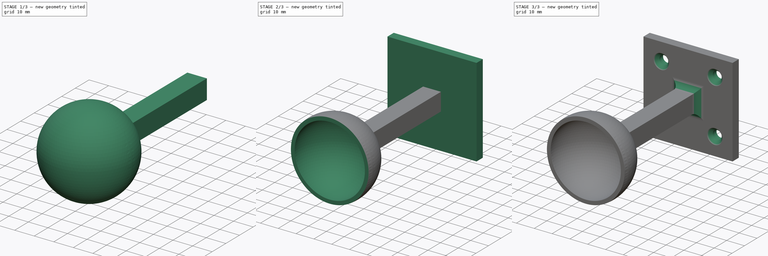
[diagram: build sequence overview — one tinted view per stage of 3, left to right]
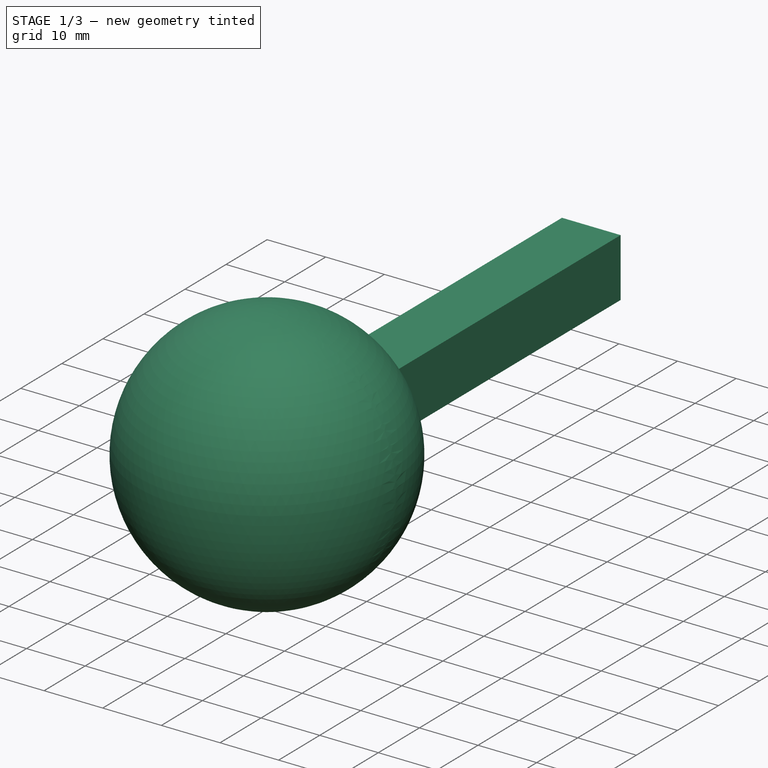
[diagram: stage 1 of 3 — iso view after this stage's code; geometry added in this stage tinted green]
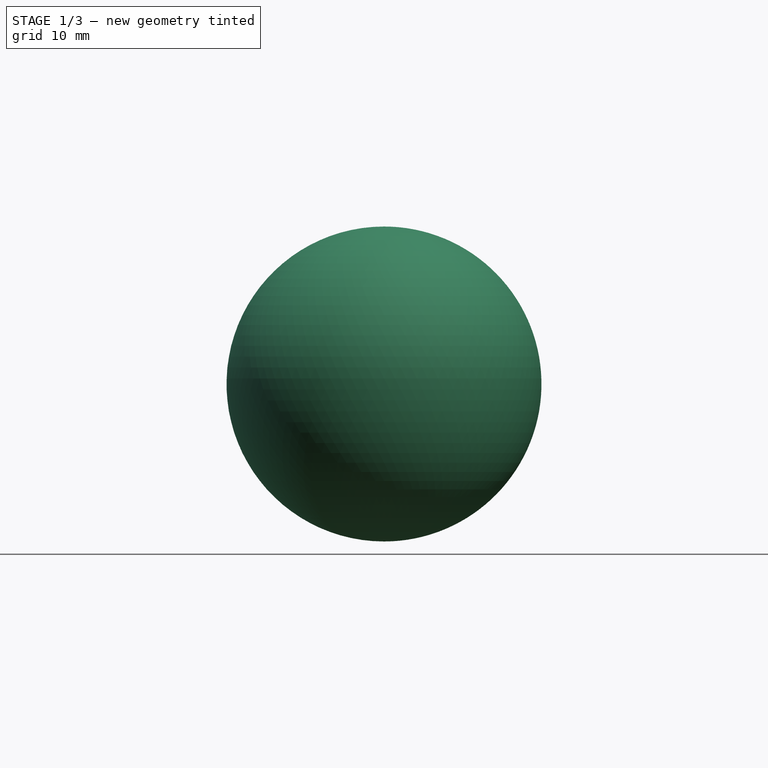
[diagram: stage 1 of 3 — front view after this stage's code; geometry added in this stage tinted green]
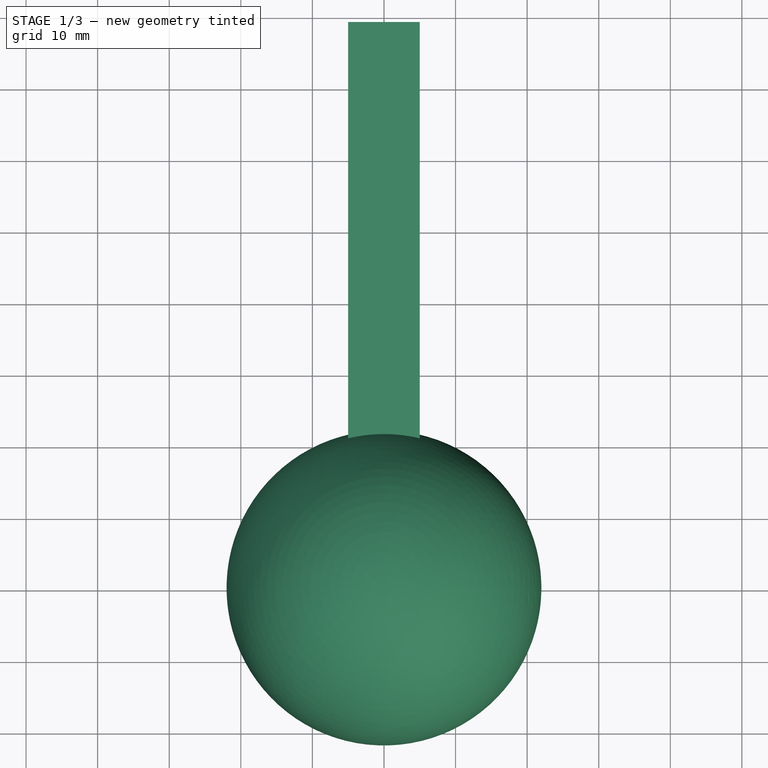
[diagram: stage 1 of 3 — top view after this stage's code; geometry added in this stage tinted green]
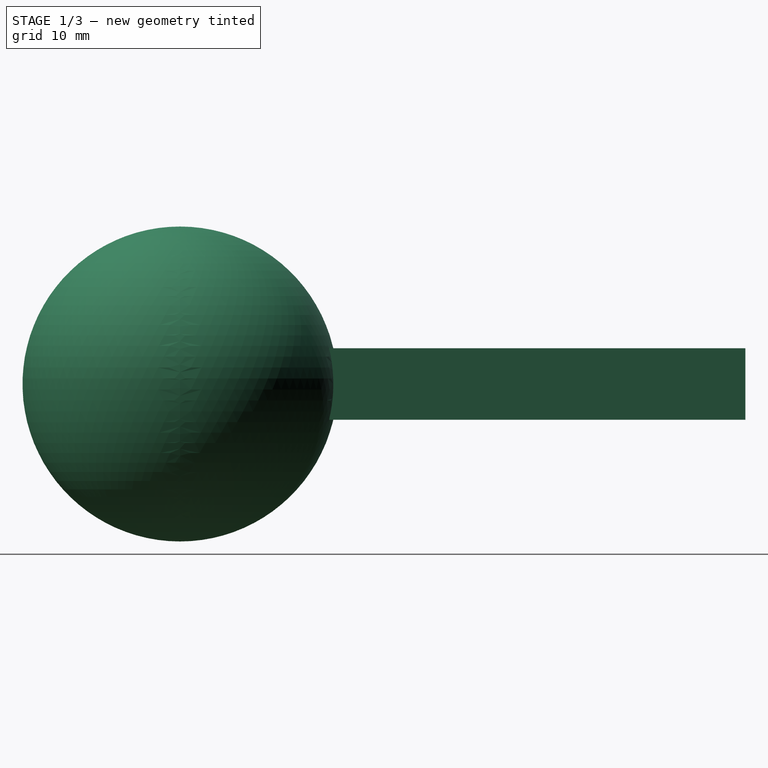
[diagram: stage 1 of 3 — right view after this stage's code; geometry added in this stage tinted green]
FCSTD DOCUMENT  (FreeCAD 1.1R20260325 (Git shallow))
Label: rpi mount socket
License: All rights reserved
LicenseURL: https://en.wikipedia.org/wiki/All_rights_reserved
objects: Sketcher::SketchObject×2, App::Point×1, PartDesign::AdditiveSphere×1, PartDesign::AdditiveBox×1, PartDesign::SubtractiveSphere×1, PartDesign::SubtractiveBox×1, PartDesign::Pad×1, PartDesign::Hole×1, PartDesign::Fillet×1, PartDesign::Body×1
note: 26 computed .brp shape members not serialized (recipe doc carries the construction recipe); baked Part::Feature solids carry a one-line shape summary decoded from their .brp

FEATURE [App::Point] Origin005  label="Origin006"
  Role = Origin
FEATURE [PartDesign::AdditiveSphere] Sphere003
  Angle1 = -90
  Angle2 = 90
  Angle3 = 360
  AttacherType = Attacher::AttachEngine3D
  Radius = 22
  Refine = true
  Suppressed = false
FEATURE [PartDesign::AdditiveBox] Box
  AttacherType = Attacher::AttachEngine3D
  AttachmentOffset = pos=(-5,9,-5) rot=(0,0,1;0rad)
  AttachmentSupport = -> [Origin004]
  BaseFeature = -> Sphere003
  Height = 10
  Length = 10
  MapMode = 5
  Placement = pos=(-5,9,-5) rot=(0,0,1;0rad)
  Refine = true
  Suppressed = false
  Width = 70
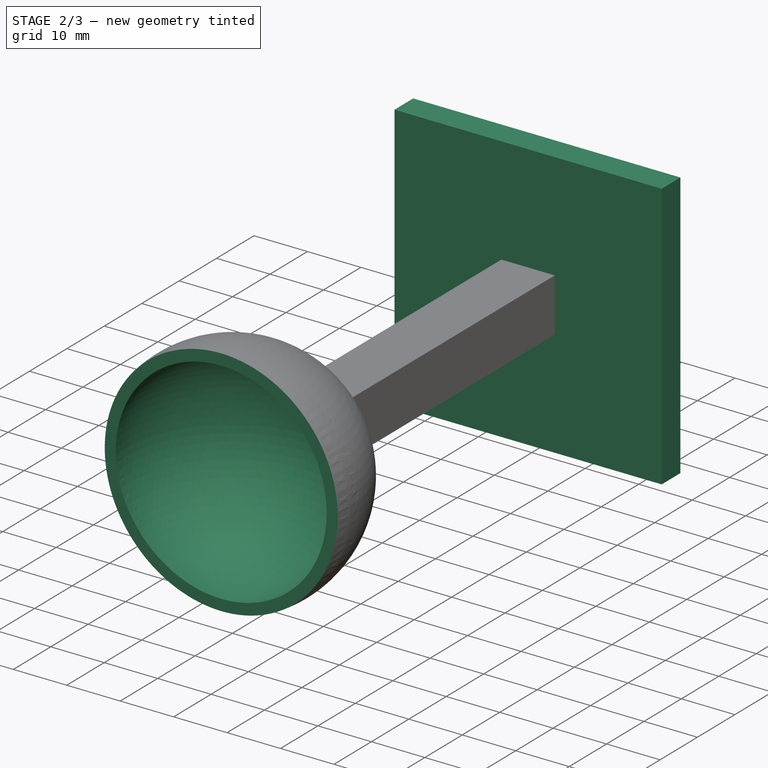
[diagram: stage 2 of 3 — iso view after this stage's code; geometry added in this stage tinted green]
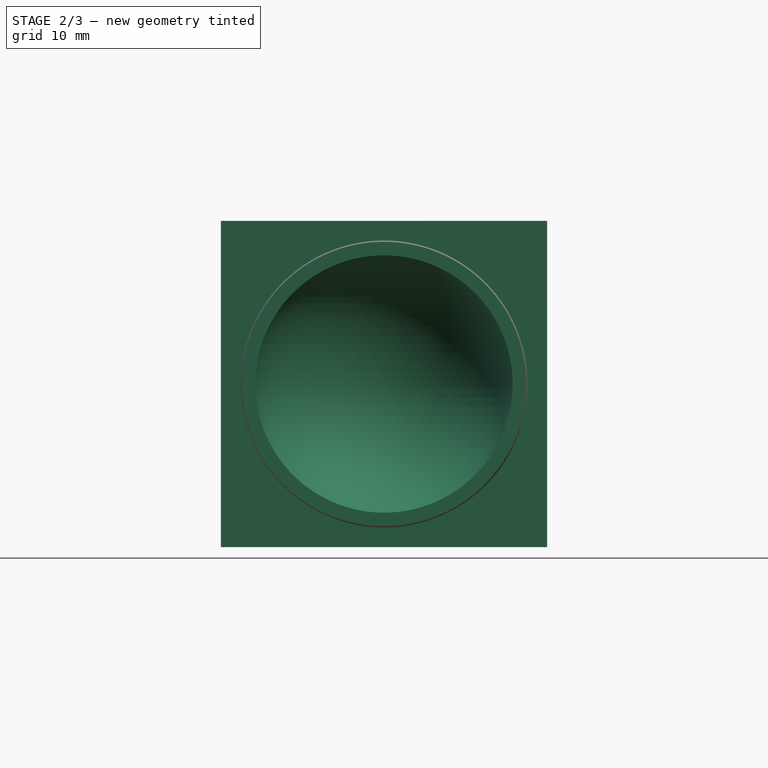
[diagram: stage 2 of 3 — front view after this stage's code; geometry added in this stage tinted green]
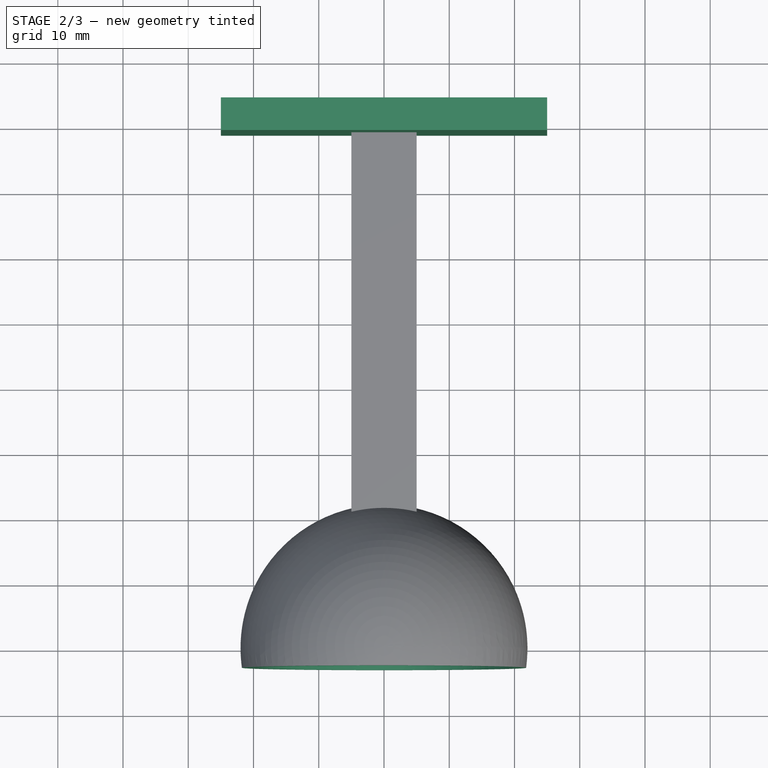
[diagram: stage 2 of 3 — top view after this stage's code; geometry added in this stage tinted green]
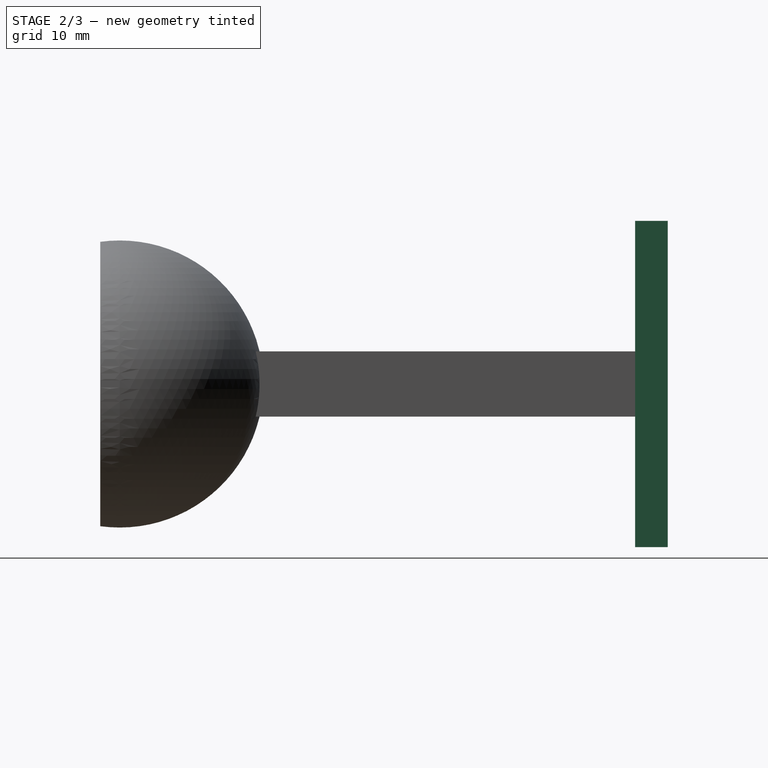
[diagram: stage 2 of 3 — right view after this stage's code; geometry added in this stage tinted green]
FEATURE [PartDesign::SubtractiveSphere] Sphere
  Angle1 = -90
  Angle2 = 90
  Angle3 = 360
  AttacherType = Attacher::AttachEngine3D
  BaseFeature = -> Box
  Radius = 19.95
  Refine = true
  Suppressed = false
FEATURE [PartDesign::SubtractiveBox] Box001
  AttacherType = Attacher::AttachEngine3D
  AttachmentOffset = pos=(-25,-33,-25) rot=(0,0,1;0rad)
  AttachmentSupport = -> [Origin004]
  BaseFeature = -> Sphere
  Height = 60
  Length = 60
  MapMode = 5
  Placement = pos=(-25,-33,-25) rot=(0,0,1;0rad)
  Refine = true
  Suppressed = false
  Width = 30
FEATURE [Sketcher::SketchObject] Sketch
  ArcFitTolerance = 1e-06
  AttachmentSupport = -> [Box001]
  ExternalGeometry = -> [Box001]
  ExternalTypes = [1,1]
  FullyConstrained = true
  MakeInternals = false
  MapMode = 5
  Placement = pos=(-25,79,-25) rot=(0,0.707107,0.707107;3.14159rad)
  _ExternalGeoVersion = 1
  sketch-geometry (5):
    g0: LineSegment StartX=-50 StartY=0 StartZ=0 EndX=7.1e-15 EndY=0 EndZ=0
    g1: LineSegment StartX=7.1e-15 StartY=0 StartZ=0 EndX=7.1e-15 EndY=50 EndZ=0
    g2: LineSegment StartX=7.1e-15 StartY=50 StartZ=0 EndX=-50 EndY=50 EndZ=0
    g3: LineSegment StartX=-50 StartY=50 StartZ=0 EndX=-50 EndY=0 EndZ=0
    g4: GeomPoint [constr] X=-25 Y=25 Z=0
  constraints (12):
    c: Coincident(g0,g1)
    c: Coincident(g1,g2)
    c: Coincident(g2,g3)
    c: Coincident(g3,g0)
    c: Horizontal(g0)
    c: Horizontal(g2)
    c: Vertical(g1)
    c: Vertical(g3)
    c: Symmetric(g2,g0,g4)
    c: Distance(g1,g3) = 50
    c: Distance(g0,g2) = 50
    c: Symmetric(g-3,g-4,g4)
FEATURE [PartDesign::Pad] Pad
  BaseFeature = -> Box001
  Direction = (0,1,-2e-16)
  Length = 5
  Length2 = 10
  Placement = pos=(-25,-33,-25) rot=(0,0,1;0rad)
  Profile = -> Sketch
  ReferenceAxis = -> Sketch [N_Axis]
  Refine = true
  SideType = 0
  Suppressed = false
  Type = 0
  Type2 = 0
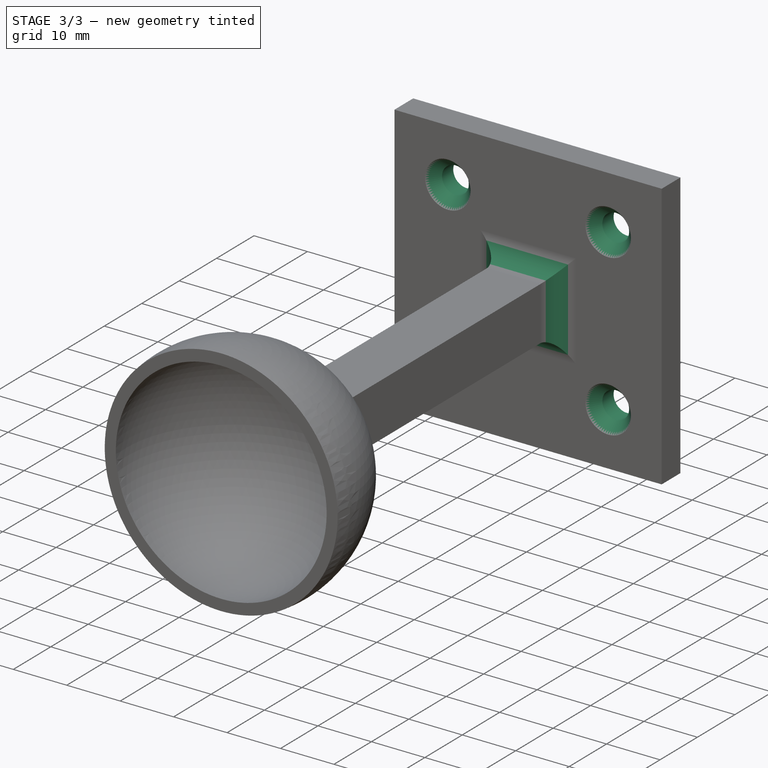
[diagram: stage 3 of 3 — iso view after this stage's code; geometry added in this stage tinted green]
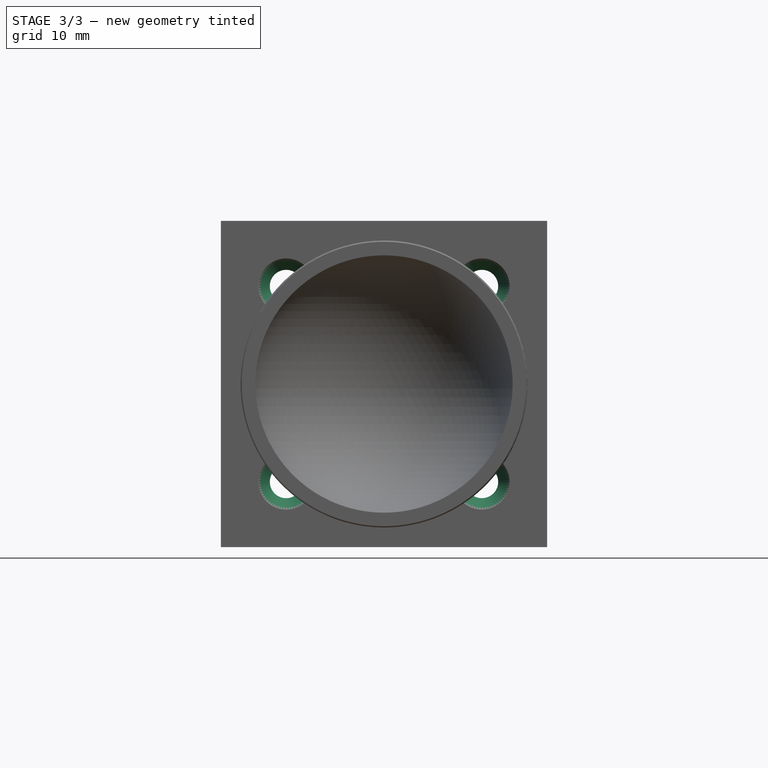
[diagram: stage 3 of 3 — front view after this stage's code; geometry added in this stage tinted green]
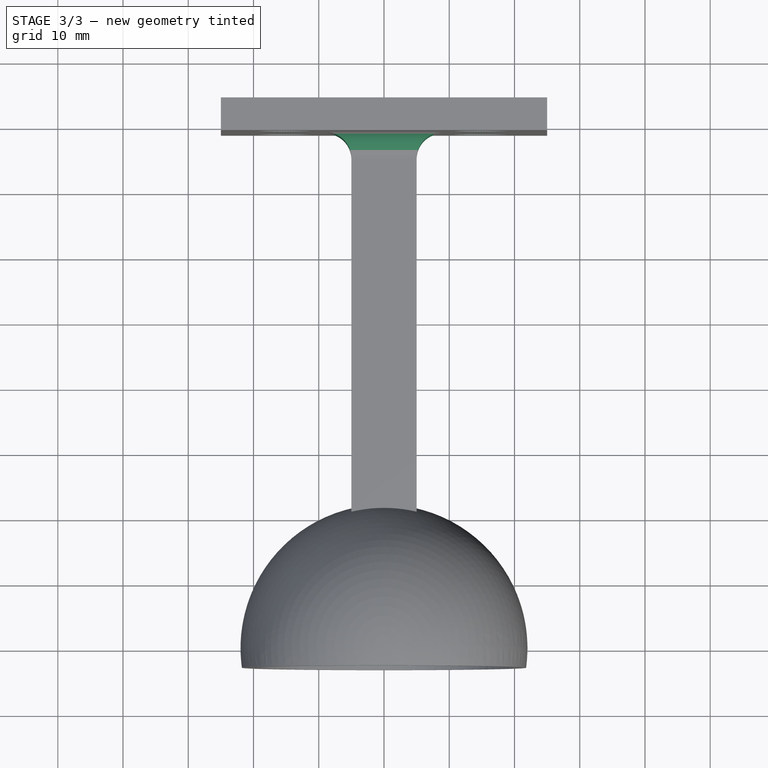
[diagram: stage 3 of 3 — top view after this stage's code; geometry added in this stage tinted green]
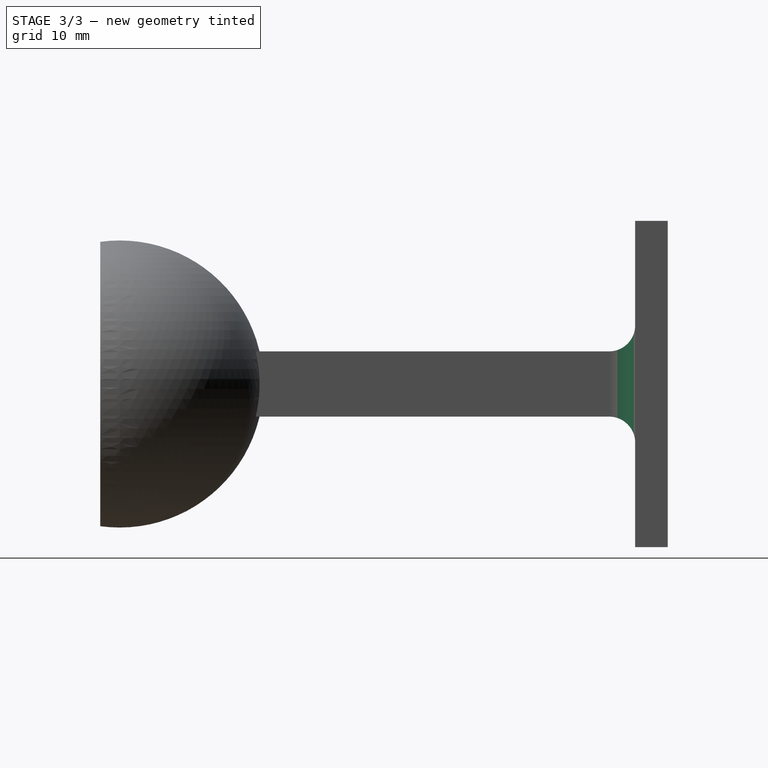
[diagram: stage 3 of 3 — right view after this stage's code; geometry added in this stage tinted green]
FEATURE [Sketcher::SketchObject] Sketch001
  ArcFitTolerance = 1e-06
  AttachmentSupport = -> [Pad]
  ExternalGeometry = -> [Pad]
  ExternalTypes = [1,1,1,1]
  FullyConstrained = true
  MakeInternals = false
  MapMode = 5
  Placement = pos=(-25,79,-25) rot=(1,0,0;1.5708rad)
  _ExternalGeoVersion = 1
  sketch-geometry (4):
    g0: Circle CenterX=10 CenterY=40 CenterZ=0 NormalX=0 NormalY=0 NormalZ=1 AngleXU=0 Radius=2.5
    g1: Circle CenterX=40 CenterY=40 CenterZ=0 NormalX=0 NormalY=0 NormalZ=1 AngleXU=0 Radius=2.5
    g2: Circle CenterX=10 CenterY=10 CenterZ=0 NormalX=0 NormalY=0 NormalZ=1 AngleXU=0 Radius=2.5
    g3: Circle CenterX=40 CenterY=10 CenterZ=0 NormalX=0 NormalY=0 NormalZ=1 AngleXU=0 Radius=2.5
  constraints (12):
    c: Diameter(g0) = 5
    c: Diameter(g1) = 5
    c: Diameter(g2) = 5
    c: Diameter(g3) = 5
    c: Vertical(g1,g3)
    c: Vertical(g0,g2)
    c: Horizontal(g0,g1)
    c: Horizontal(g2,g3)
    c: Distance(g2,g3) = 30
    c: DistanceY(g3,g1) = 30
    c: DistanceY(g-5,g2) = 10
    c: DistanceX(g-5,g2) = 10
FEATURE [PartDesign::Hole] Hole
  BaseFeature = -> Pad
  BaseProfileType = 6
  CustomThreadClearance = 0
  Depth = 5
  DepthType = 0
  Diameter = 5
  DrillForDepth = false
  DrillPoint = 1
  DrillPointAngle = 118
  HoleCutCountersinkAngle = 82
  HoleCutCustomValues = false
  HoleCutDepth = 4.88907
  HoleCutDiameter = 8.5
  HoleCutType = 2
  ModelThread = false
  Placement = pos=(-25,-33,-25) rot=(0,0,1;0rad)
  Profile = -> Sketch001
  Refine = true
  Suppressed = false
  Tapered = false
  TaperedAngle = 90
  ThreadClass = 0
  ThreadDepth = 5
  ThreadDepthType = 0
  ThreadDiameter = 4.166
  ThreadDirection = 0
  ThreadFit = 0
  ThreadSize = 6
  ThreadType = 3
  Threaded = false
  UseCustomThreadClearance = false
FEATURE [PartDesign::Fillet] Fillet
  Base = -> Hole [Edge14,Edge10,Edge12,Edge16]
  BaseFeature = -> Hole
  Placement = pos=(-25,-33,-25) rot=(0,0,1;0rad)
  Radius = 4
  Refine = true
  SupportTransform = false
  Suppressed = false
  UseAllEdges = false
FEATURE [PartDesign::Body] Body002  label="base"
  AllowCompound = false
  Group = -> [Sphere003,Box,Sphere,Box001,Sketch,Pad,Sketch001,Hole,Fillet]
  Origin = -> Origin004
  Placement = pos=(0,0,0) rot=(0,0,1;3.14159rad)
  Tip = -> Fillet
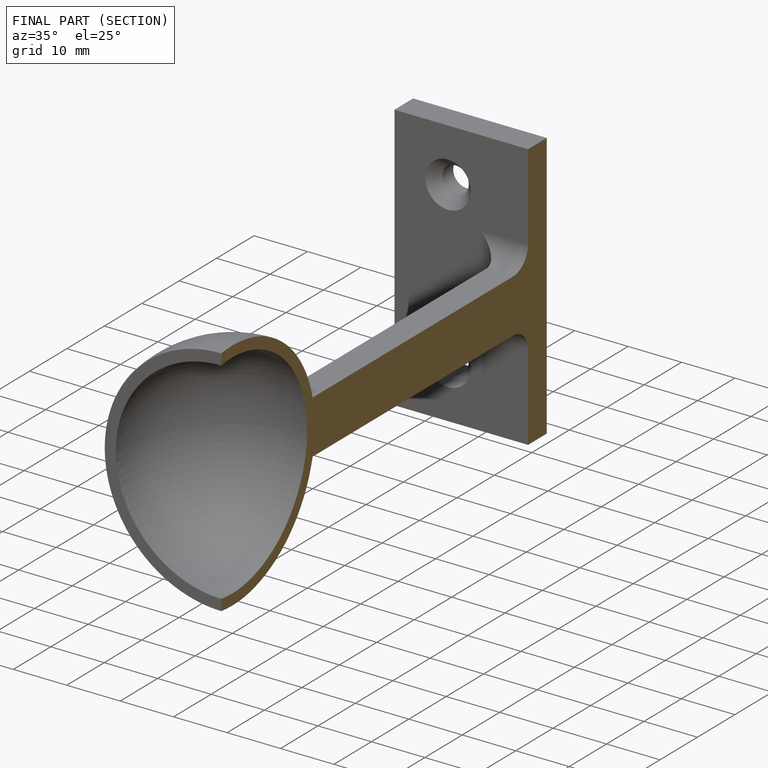
[diagram: finished part — half-section view (interior)]
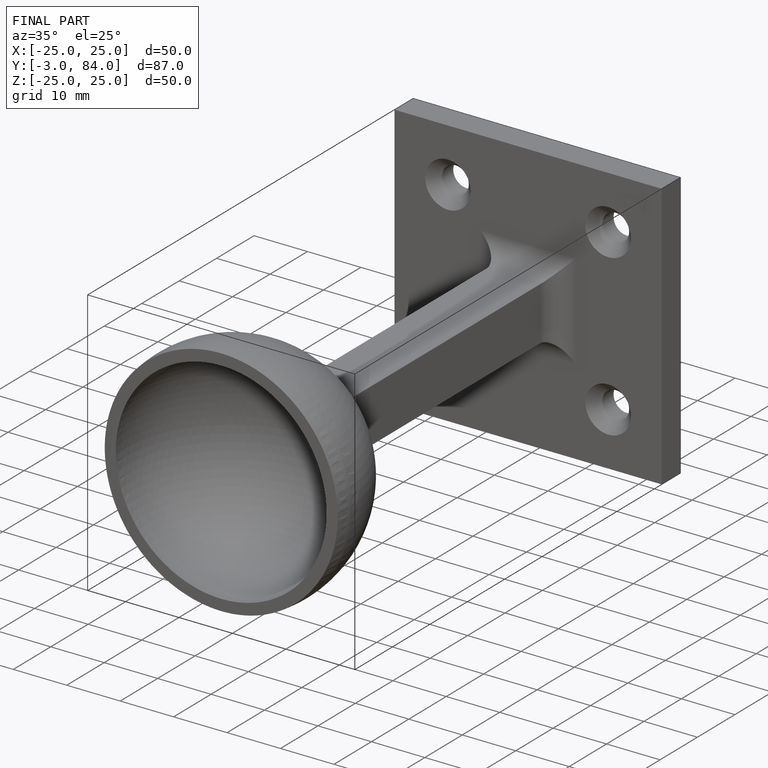
[diagram: finished part — iso view with bounding-box wireframe]
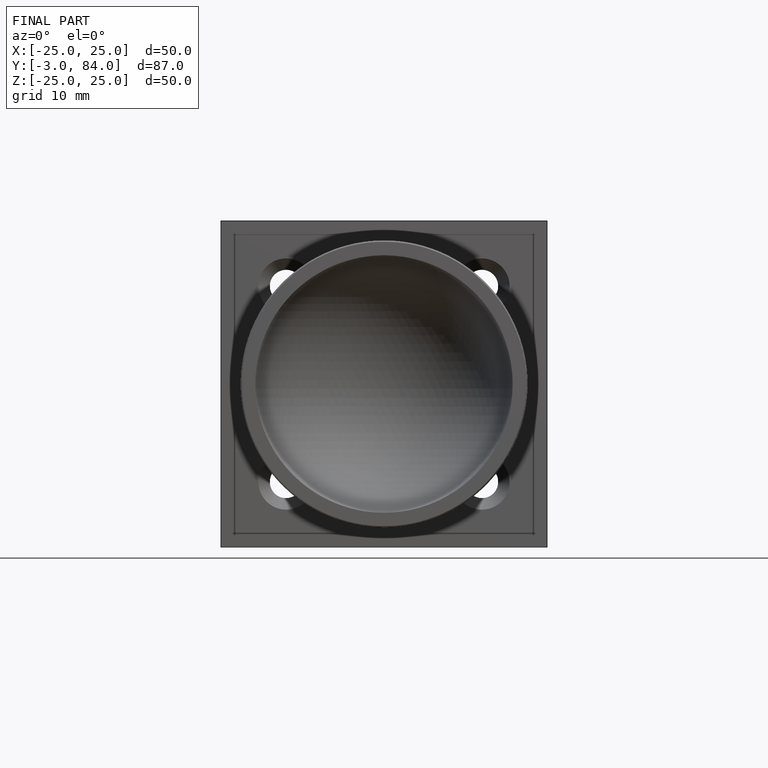
[diagram: finished part — front view with bounding-box wireframe]
